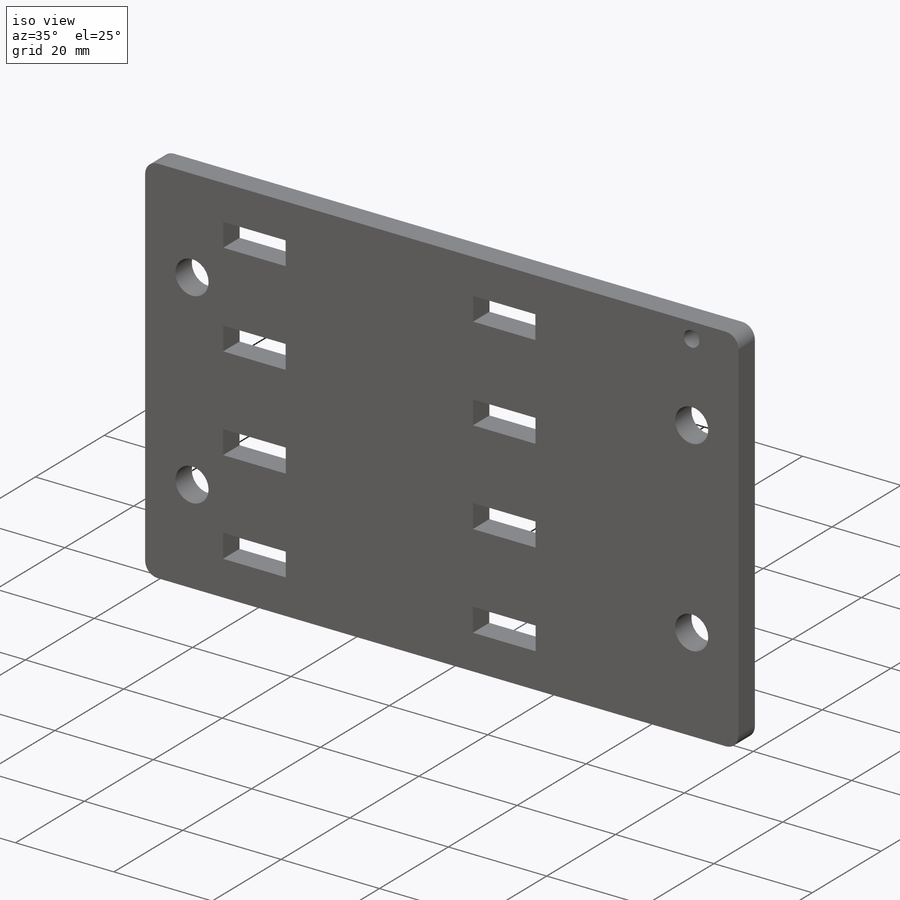
[diagram: iso view]
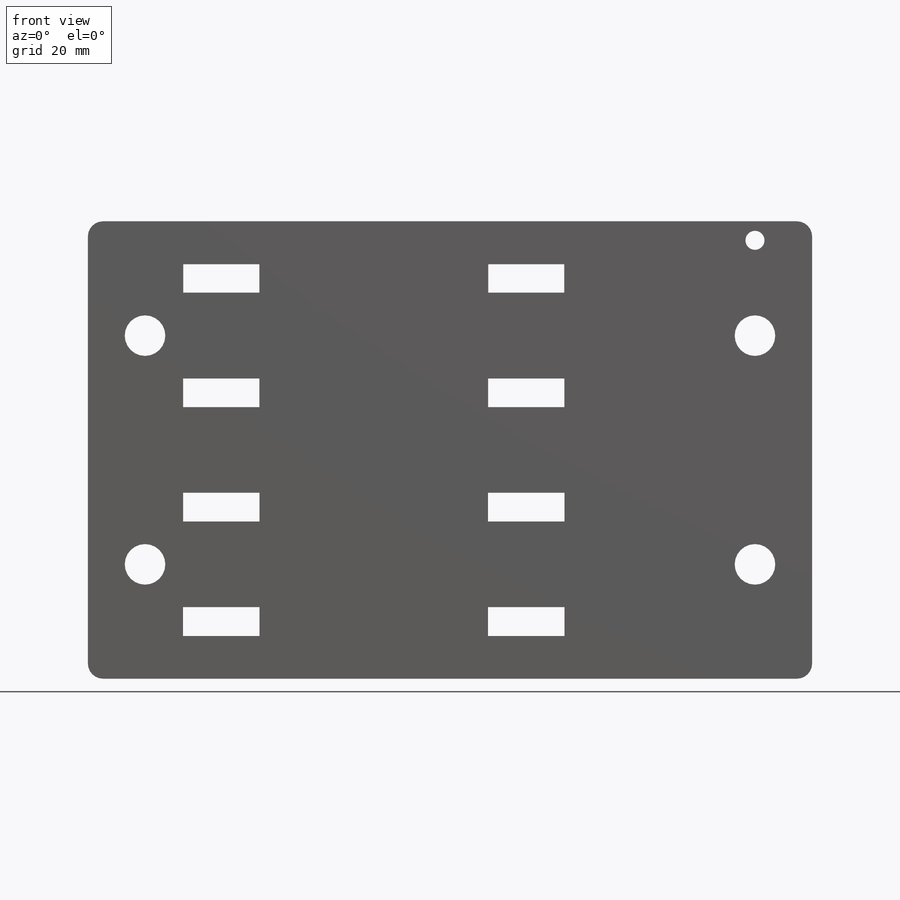
[diagram: front view]
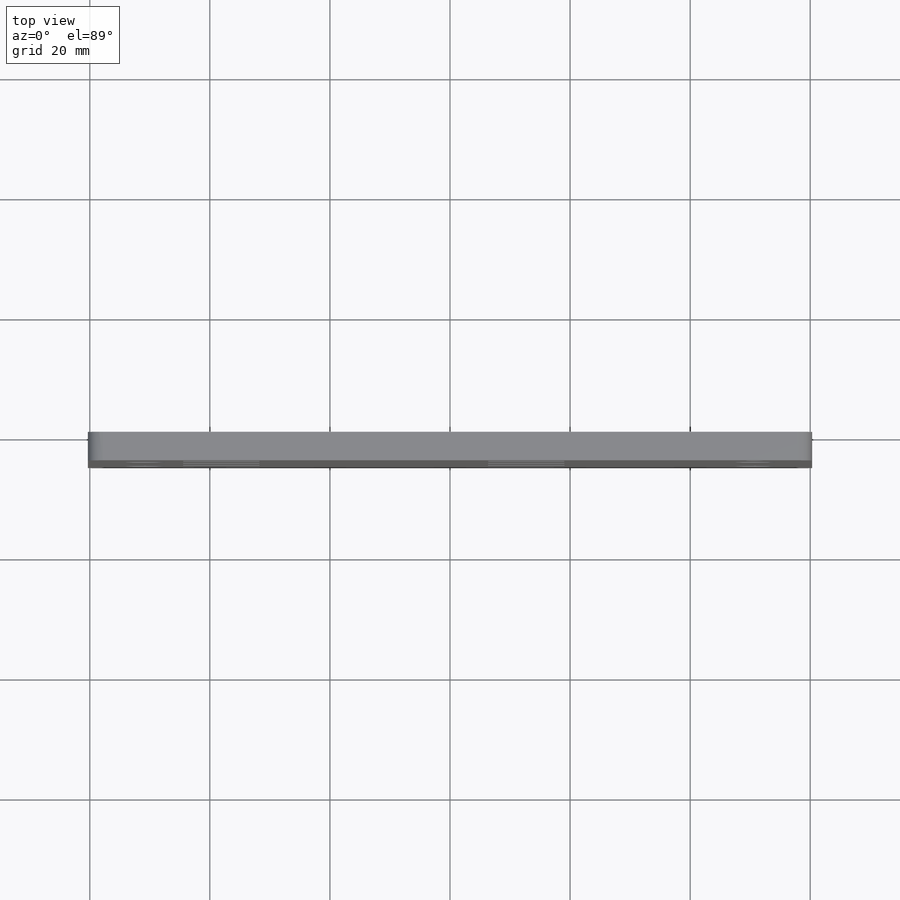
[diagram: top view]
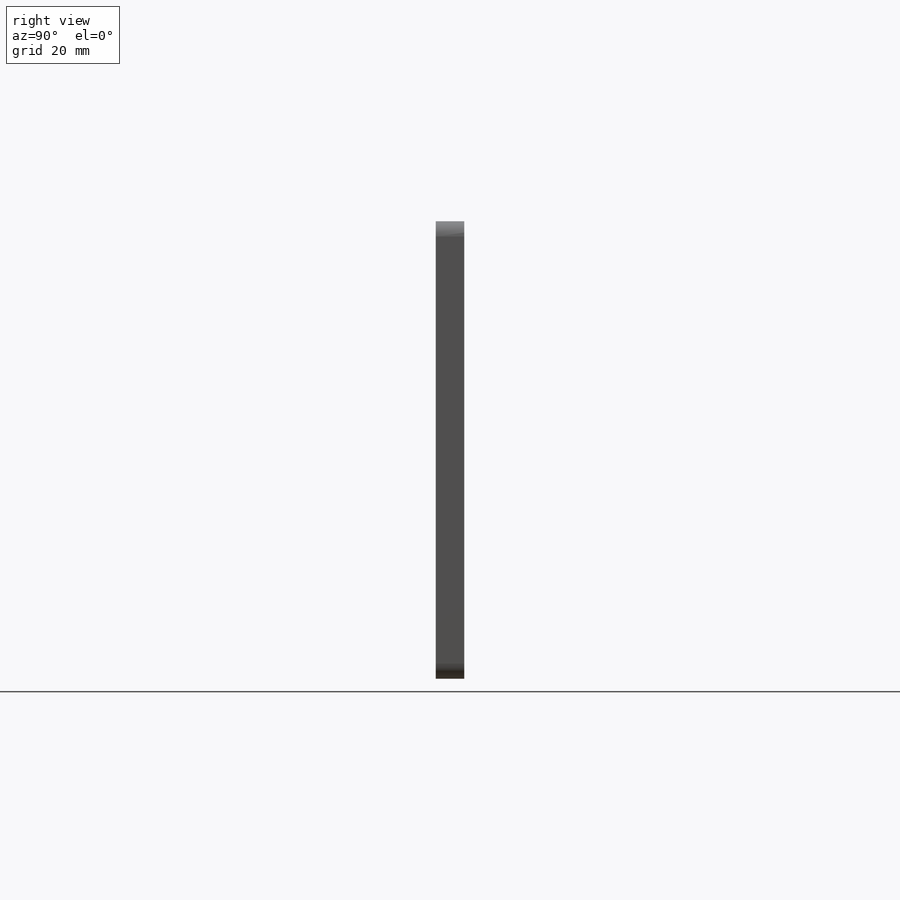
[diagram: right view]
SOLIDWORKS PART (.sldprt)
format: sldprt  version: not decoded by parser v0  size: 278,528 bytes
history: native  units: mm
features: sketch x5, cut_extrude x2, material x1, extrude x1, hole x1, fillet x1 (+11 scaffold rows collapsed)
feature tree (22):
  scaffold x11  (default folders/planes/origin — collapsed)
  material  "Material <not specified>"
  sketch  "Sketch1"  dims[D1=120.65mm D2=76.2mm]
  extrude  "Boss-Extrude1"  Depth=4.7625mm
  sketch  "Sketch2"  dims[c1.D1=114.3mm c1.D2=19.05mm c1.D3=50.8mm c1.D4=12.6746mm c1.D5=12.6746mm c1.D6=4.7371mm c1.D7=4.7371mm c1.D8=9.525mm c1.D9=9.525mm c1.D10=~25.421744mm c2.D10=~33.690068deg c3.D10=12.7mm c3.D11=4.7625mm c3.D12=19.05mm c3.D13=12.7mm c3.D14=4.7625mm c3.D15=19.05mm c3.D16=12.7254mm c3.D17=4.7879mm c3.D18=12.7254mm c3.D19=4.7879mm c3.D20=19.05mm c3.D21=19.05mm c3.D22=12.7508mm c3.D23=4.8133mm c3.D24=19.05mm c3.D25=12.7508mm c3.D26=4.8133mm c3.D27=19.05mm c3.D28=~21.298547mm]
  cut_extrude  "Cut-Extrude1"  [1 undecoded]
  hole  "1/4 Clearance Hole1"  Diameter=6.7564mm Depth=25.4mm
  sketch  "Sketch5"  dims[D1=9.525mm D2=9.525mm D3=9.525mm D4=9.525mm D5=9.525mm D6=9.525mm]
  sketch  "Sketch4"  dims[hole-wizard template sketch: 50 standard entries collapsed; hole parameters above]
  sketch  "Sketch6"  dims[D3=3.175mm D1=9.525mm D2=34.925mm]
  cut_extrude  "Cut-Extrude2"  [1 undecoded]
  fillet  "Fillet1"  Radius=2.54mm
decode coverage: 8 of 10 modeling features carry decoded parameters
note: ~ marks probable driven/reference dimensions
note: 2 parameter values undecoded
note: suppression state not decoded; provenance and decode notes live in map.json
